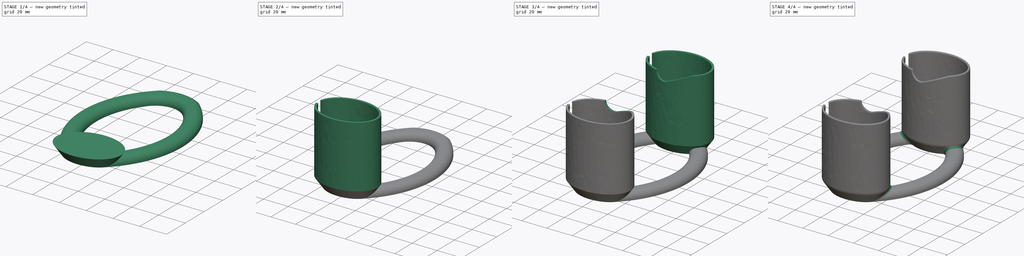
[diagram: build sequence overview — one tinted view per stage of 4, left to right]
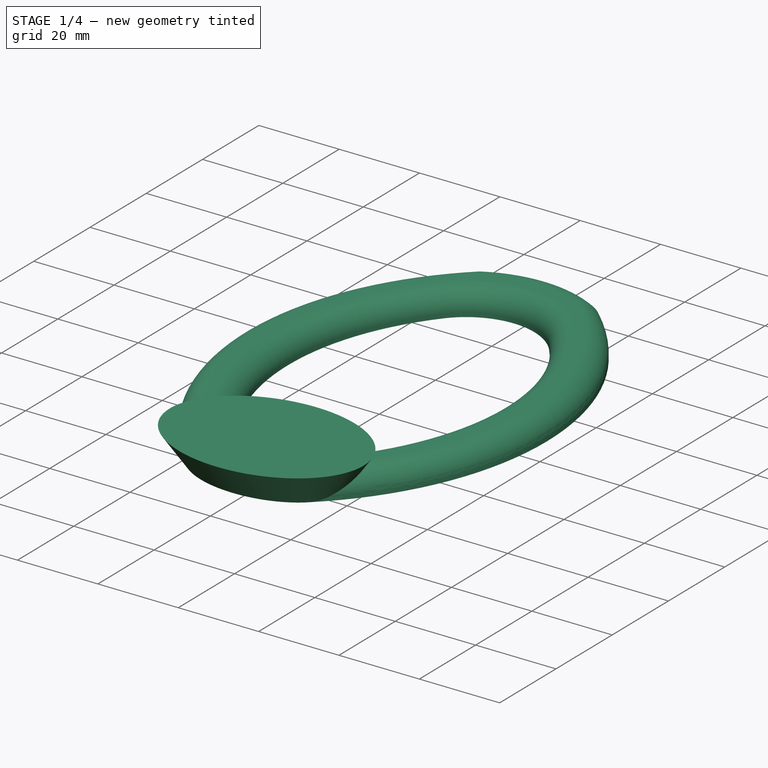
[diagram: stage 1 of 4 — iso view after this stage's code; geometry added in this stage tinted green]
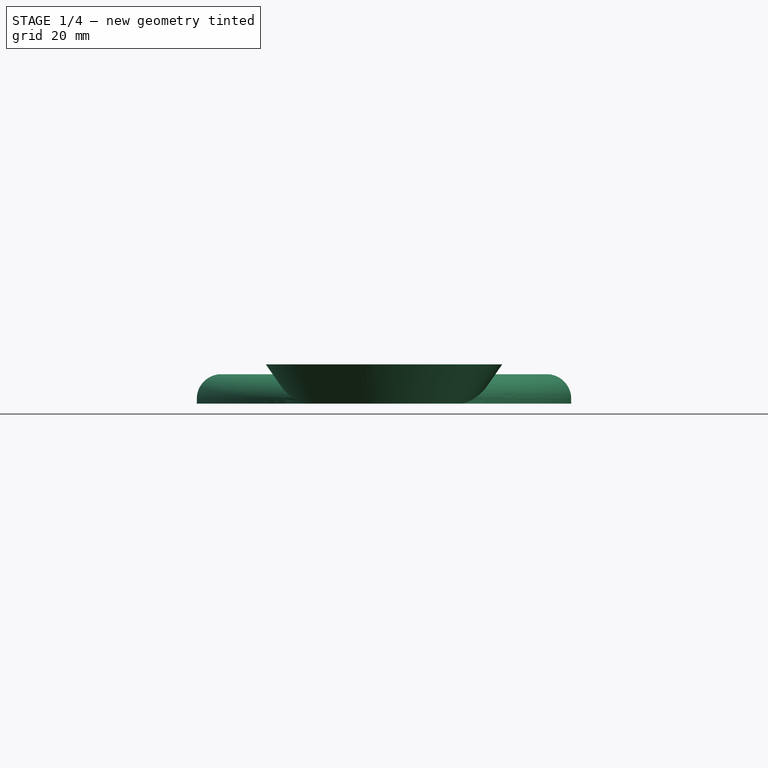
[diagram: stage 1 of 4 — front view after this stage's code; geometry added in this stage tinted green]
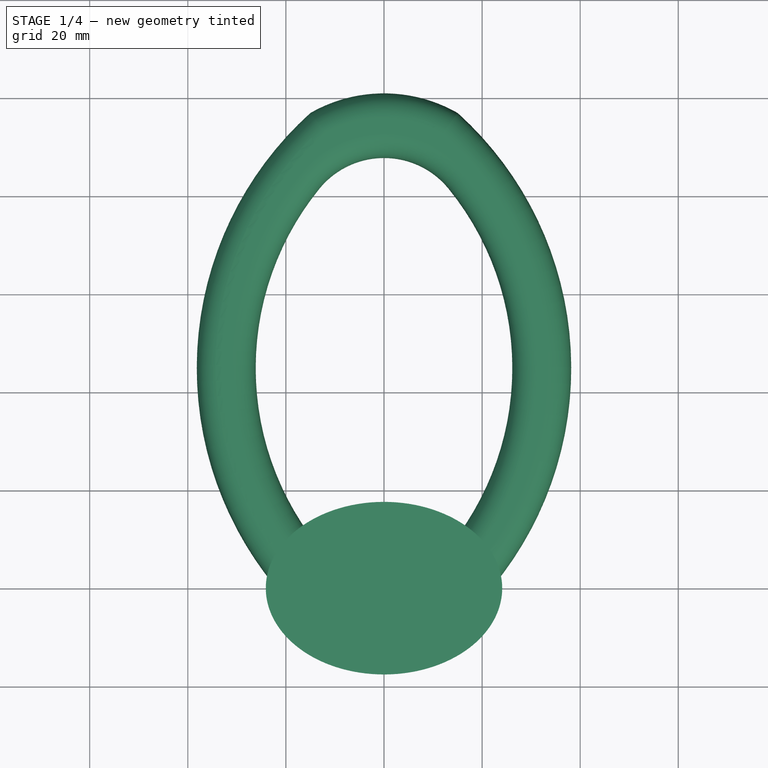
[diagram: stage 1 of 4 — top view after this stage's code; geometry added in this stage tinted green]
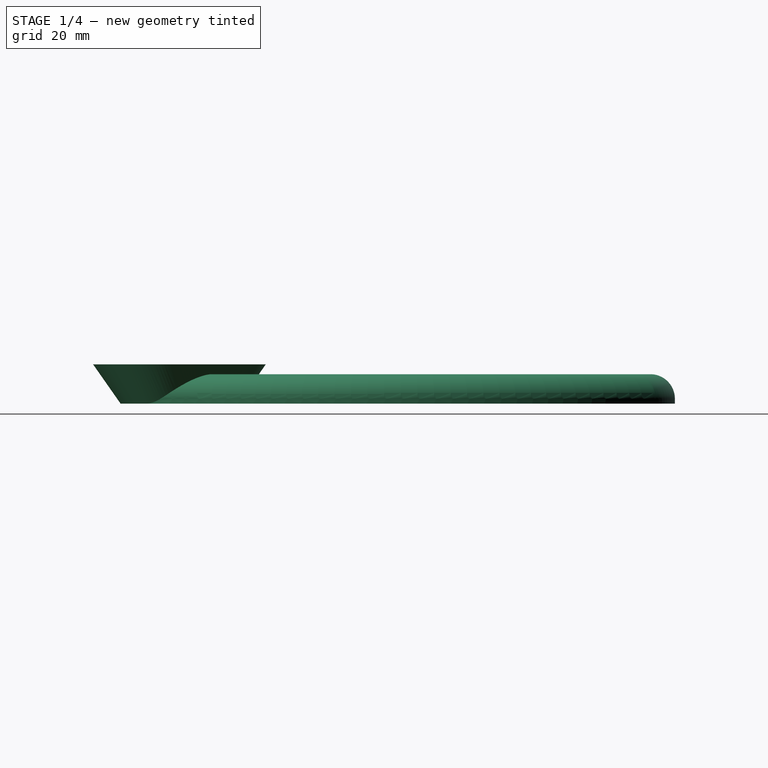
[diagram: stage 1 of 4 — right view after this stage's code; geometry added in this stage tinted green]
FCSTD DOCUMENT  (FreeCAD 0.21R33771 (Git))
Label: Q3ControllerHolder
License: All rights reserved
LicenseURL: http://en.wikipedia.org/wiki/All_rights_reserved
objects: Sketcher::SketchObject×9, PartDesign::Fillet×4, PartDesign::Pad×2, PartDesign::Pocket×2, PartDesign::AdditiveLoft×1, PartDesign::SubtractiveLoft×1, PartDesign::LinearPattern×1, PartDesign::Body×1
note: 31 computed .brp shape members not serialized (recipe doc carries the construction recipe); baked Part::Feature solids carry a one-line shape summary decoded from their .brp

FEATURE [Sketcher::SketchObject] Sketch005
  AttachmentOffset = pos=(0,8,1) rot=(0,0,1;0rad)
  FullyConstrained = true
  MapMode = 5
  Placement = pos=(1,1.6e-15,8) rot=(0.57735,0.57735,0.57735;2.0944rad)
  Support = -> [YZ_Plane]
  expr: .AttachmentOffset.Base.y = <<Sketch>>.AttachmentOffset.Base.z
  expr: Constraints[7] = <<Pad001>>.Length
  sketch-geometry (5):
    g0: LineSegment StartX=-0.05 StartY=2.05 StartZ=0 EndX=-0.05 EndY=50 EndZ=0
    g1: LineSegment StartX=-0.05 StartY=50 StartZ=0 EndX=0.05 EndY=50 EndZ=0
    g2: LineSegment StartX=0.05 StartY=50 StartZ=0 EndX=0.05 EndY=2.05 EndZ=0
    g3: ArcOfCircle CenterX=0 CenterY=2.05 CenterZ=0 NormalX=0 NormalY=0 NormalZ=1 AngleXU=0 Radius=0.05 StartAngle=3.14159 EndAngle=6.28319
    g4: GeomPoint X=0 Y=2 Z=0
  constraints (12):
    c: Vertical(g0)
    c: Coincident(g0,g1)
    c: Coincident(g1,g2)
    c: Vertical(g2)
    c: Tangent(g2,g3) = 1.5708
    c: Tangent(g0,g3) = 1.5708
    c: Symmetric(g0,g1,g-2)
    c: DistanceY(g-1,g0) = 50
    c: PointOnObject(g4,g3)
    c: PointOnObject(g4,g-2)
    c: DistanceY(g-1,g4) = 2
    c: DistanceX(g1,g1) = 0.1
FEATURE [Sketcher::SketchObject] Sketch006
  AttachmentOffset = pos=(0,8,-24.1) rot=(0,0,1;0rad)
  FullyConstrained = true
  MapMode = 5
  Placement = pos=(-24.1,7.1e-15,8) rot=(0.57735,0.57735,0.57735;2.0944rad)
  Support = -> [YZ_Plane]
  expr: .AttachmentOffset.Base.y = <<Sketch>>.AttachmentOffset.Base.z
  expr: .AttachmentOffset.Base.z = -Sketch004.Constraints.Wo / 2
  expr: Constraints[7] = <<Pad001>>.Length
  sketch-geometry (5):
    g0: LineSegment StartX=-2.5 StartY=4.5 StartZ=0 EndX=-2.5 EndY=50 EndZ=0
    g1: LineSegment StartX=-2.5 StartY=50 StartZ=0 EndX=2.5 EndY=50 EndZ=0
    g2: LineSegment StartX=2.5 StartY=50 StartZ=0 EndX=2.5 EndY=4.5 EndZ=0
    g3: ArcOfCircle CenterX=1e-16 CenterY=4.5 CenterZ=0 NormalX=0 NormalY=0 NormalZ=1 AngleXU=0 Radius=2.5 StartAngle=3.14159 EndAngle=6.28319
    g4: GeomPoint X=0 Y=2 Z=0
  constraints (12):
    c: Vertical(g0)
    c: Coincident(g0,g1)
    c: Coincident(g1,g2)
    c: Vertical(g2)
    c: Tangent(g2,g3) = 1.5708
    c: Tangent(g0,g3) = 1.5708
    c: Symmetric(g0,g1,g-2)
    c: DistanceY(g-1,g0) = 50
    c: PointOnObject(g4,g3)
    c: PointOnObject(g4,g-2)
    c: DistanceY(g-1,g4) = 2
    c: DistanceX(g1,g1) = 5
FEATURE [Sketcher::SketchObject] Sketch007
  AttachmentOffset = pos=(0,8,-45) rot=(0,0,1;0rad)
  FullyConstrained = true
  MapMode = 5
  Placement = pos=(0,45,8) rot=(1,0,0;1.5708rad)
  Support = -> [XZ_Plane]
  expr: .AttachmentOffset.Base.y = <<Sketch>>.AttachmentOffset.Base.z
  expr: .AttachmentOffset.Base.z = -<<Sketch009>>.Constraints.Dist / 2
  expr: Constraints[9] = <<Pad001>>.Length
  sketch-geometry (4):
    g0: LineSegment StartX=-7 StartY=50 StartZ=0 EndX=17.6378 EndY=50 EndZ=0
    g1: ArcOfCircle CenterX=-0.5 CenterY=50 CenterZ=0 NormalX=0 NormalY=0 NormalZ=1 AngleXU=0 Radius=6.5 StartAngle=3.14159 EndAngle=5.07891
    g2: LineSegment StartX=-7 StartY=50 StartZ=0 EndX=-7 EndY=40.5424 EndZ=0
    g3: LineSegment StartX=1.82939 StartY=43.9317 StartZ=0 EndX=17.6378 EndY=50 EndZ=0
  constraints (12):
    c: Horizontal(g0)
    c: Coincident(g1,g0)
    c: Coincident(g2,g0)
    c: Vertical(g2)
    c: Tangent(g2,g1)
    c: Coincident(g3,g0)
    c: Tangent(g1,g3) = -1.5708
    c: PointOnObject(g2,g3)
    c: Angle(g0,g3) = 0.366519
    c: DistanceY(g-1,g0) = 50
    c: DistanceX(g0,g-1) = 7
    c: Radius(g1) = 6.5
FEATURE [Sketcher::SketchObject] Sketch004
  FullyConstrained = true
  MapMode = 5
  Support = -> [XY_Plane]
  sketch-geometry (33):
    g0: Ellipse CenterX=0 CenterY=0 CenterZ=0 NormalX=0 NormalY=0 NormalZ=1 MajorRadius=22.5 MinorRadius=16 AngleXU=0
    g1: LineSegment StartX=22.5 StartY=0 StartZ=0 EndX=-22.5 EndY=0 EndZ=0
    g2: LineSegment StartX=0 StartY=16 StartZ=0 EndX=0 EndY=-16 EndZ=0
    g3: GeomPoint X=15.8193 Y=0 Z=0
    g4: GeomPoint X=-15.8193 Y=0 Z=0
    g5: Ellipse CenterX=0 CenterY=0 CenterZ=0 NormalX=0 NormalY=0 NormalZ=1 MajorRadius=24.1 MinorRadius=17.6 AngleXU=0
    g6: LineSegment StartX=24.1 StartY=0 StartZ=0 EndX=-24.1 EndY=0 EndZ=0
    g7: LineSegment StartX=0 StartY=17.6 StartZ=0 EndX=0 EndY=-17.6 EndZ=0
    g8: GeomPoint X=16.4636 Y=0 Z=0
    g9: GeomPoint X=-16.4636 Y=0 Z=0
    g10: LineSegment StartX=-24.1 StartY=0 StartZ=0 EndX=-22.5 EndY=0 EndZ=0
    g11: LineSegment StartX=0 StartY=16 StartZ=0 EndX=0 EndY=17.6 EndZ=0
    g12: LineSegment StartX=-9 StartY=11 StartZ=0 EndX=9 EndY=11 EndZ=0
    g13: LineSegment StartX=9 StartY=11 StartZ=0 EndX=9 EndY=-11 EndZ=0
    g14: LineSegment StartX=9 StartY=-11 StartZ=0 EndX=-9 EndY=-11 EndZ=0
    g15: LineSegment StartX=-9 StartY=-11 StartZ=0 EndX=-9 EndY=11 EndZ=0
    g16: Ellipse CenterX=0 CenterY=4 CenterZ=0 NormalX=0 NormalY=0 NormalZ=1 MajorRadius=9 MinorRadius=7 AngleXU=0
    g17: LineSegment StartX=9 StartY=4 StartZ=0 EndX=-9 EndY=4 EndZ=0
    g18: LineSegment StartX=0 StartY=11 StartZ=0 EndX=0 EndY=-3 EndZ=0
    g19: GeomPoint X=5.65685 Y=4 Z=0
    g20: GeomPoint X=-5.65685 Y=4 Z=0
    g21: Ellipse CenterX=0 CenterY=-4 CenterZ=0 NormalX=0 NormalY=0 NormalZ=1 MajorRadius=9 MinorRadius=7 AngleXU=0
    g22: LineSegment StartX=9 StartY=-4 StartZ=0 EndX=-9 EndY=-4 EndZ=0
    g23: LineSegment StartX=0 StartY=3 StartZ=0 EndX=0 EndY=-11 EndZ=0
    g24: GeomPoint X=5.65685 Y=-4 Z=0
    g25: GeomPoint X=-5.65685 Y=-4 Z=0
    g26: Ellipse CenterX=0 CenterY=0 CenterZ=0 NormalX=0 NormalY=0 NormalZ=1 MajorRadius=18.5 MinorRadius=12 AngleXU=0
    g27: LineSegment StartX=18.5 StartY=0 StartZ=0 EndX=-18.5 EndY=0 EndZ=0
    g28: LineSegment StartX=0 StartY=12 StartZ=0 EndX=0 EndY=-12 EndZ=0
    g29: GeomPoint X=14.0801 Y=0 Z=0
    g30: GeomPoint X=-14.0801 Y=0 Z=0
    g31: LineSegment StartX=0 StartY=12 StartZ=0 EndX=0 EndY=16 EndZ=0
    g32: LineSegment StartX=-18.5 StartY=0 StartZ=0 EndX=-22.5 EndY=0 EndZ=0
  constraints (47):
    c: InternalAlignment(g1-g4 -> g0) x4
    c: Horizontal(g1)
    c: DistanceX(g1,g1) = 45  'Wi'
    c: DistanceY(g2,g2) = 32  'Li'
    c: InternalAlignment(g6-g9 -> g5) x4
    c: Coincident(g5,g0)
    c: PointOnObject(g1,g6)
    c: DistanceX(g6,g1) = 1.6
    c: Coincident(g10,g6)
    c: Coincident(g10,g1)
    c: Coincident(g11,g2)
    c: Coincident(g11,g7)
    c: Equal(g10,g11)
    c: Coincident(g0,g-1)  '__ANCHOR__'
    c: DistanceX(g6,g6) = 48.2  'Wo'
    c: DistanceY(g7,g7) = 35.2  'Lo'
    c: Coincident(g12,g13)
    c: Coincident(g13,g14)
    c: Coincident(g14,g15)
    c: Coincident(g15,g12)
    c: Horizontal(g12)
    c: Horizontal(g14)
    c: Vertical(g13)
    c: Vertical(g15)
    c: Symmetric(g12,g13,g0)
    c: DistanceY(g14,g12) = 22
    c: DistanceX(g12,g12) = 18
    c: InternalAlignment(g17-g20 -> g16) x4
    c: PointOnObject(g16,g2)
    c: Tangent(g16,g13)
    c: Tangent(g16,g12)
    c: Horizontal(g17)
    c: InternalAlignment(g22-g25 -> g21) x4
    c: PointOnObject(g21,g2)
    c: Equal(g21,g16)
    c: Horizontal(g22)
    c: Tangent(g21,g14)
    c: DistanceY(g21,g16) = 8
    c: InternalAlignment(g27-g30 -> g26) x4
    c: Horizontal(g27)
    c: Coincident(g0,g26)
    c: Coincident(g31,g28)
    c: Coincident(g31,g2)
    c: Coincident(g32,g27)
    c: Coincident(g32,g1)
    c: Equal(g31,g32)
    c: DistanceY(g31,g31) = 4
FEATURE [Sketcher::SketchObject] Sketch
  AttachmentOffset = pos=(0,0,8) rot=(0,0,1;0rad)
  ExternalGeometry = -> [Sketch004]
  FullyConstrained = true
  MapMode = 5
  Placement = pos=(0,0,8) rot=(0,0,1;0rad)
  Support = -> [XY_Plane]
  sketch-geometry (5):
    g0: Ellipse CenterX=0 CenterY=0 CenterZ=0 NormalX=0 NormalY=0 NormalZ=1 MajorRadius=24.1 MinorRadius=17.6 AngleXU=0
    g1: LineSegment StartX=24.1 StartY=0 StartZ=0 EndX=-24.1 EndY=0 EndZ=0
    g2: LineSegment StartX=0 StartY=17.6 StartZ=0 EndX=0 EndY=-17.6 EndZ=0
    g3: GeomPoint X=16.4636 Y=0 Z=0
    g4: GeomPoint X=-16.4636 Y=0 Z=0
  constraints (4):
    c: InternalAlignment(g1-g4 -> g0) x4
    c: Horizontal(g1)
    c: Equal(g0,g-3)
    c: Coincident(g0,g-3)
FEATURE [Sketcher::SketchObject] Sketch001
  AttachmentOffset = pos=(0,0,8) rot=(0,0,1;0rad)
  ExternalGeometry = -> [Sketch004]
  FullyConstrained = true
  MapMode = 5
  Placement = pos=(0,0,8) rot=(0,0,1;0rad)
  Support = -> [XY_Plane]
  expr: .AttachmentOffset.Base.z = <<Sketch>>.AttachmentOffset.Base.z
  sketch-geometry (10):
    g0: Ellipse CenterX=0 CenterY=0 CenterZ=0 NormalX=0 NormalY=0 NormalZ=1 MajorRadius=22.5 MinorRadius=16 AngleXU=0
    g1: LineSegment StartX=22.5 StartY=0 StartZ=0 EndX=-22.5 EndY=0 EndZ=0
    g2: LineSegment StartX=0 StartY=16 StartZ=0 EndX=0 EndY=-16 EndZ=0
    g3: GeomPoint X=15.8193 Y=0 Z=0
    g4: GeomPoint X=-15.8193 Y=0 Z=0
    g5: Ellipse CenterX=0 CenterY=0 CenterZ=0 NormalX=0 NormalY=0 NormalZ=1 MajorRadius=24.1 MinorRadius=17.6 AngleXU=0
    g6: LineSegment StartX=24.1 StartY=0 StartZ=0 EndX=-24.1 EndY=0 EndZ=0
    g7: LineSegment StartX=0 StartY=17.6 StartZ=0 EndX=0 EndY=-17.6 EndZ=0
    g8: GeomPoint X=16.4636 Y=0 Z=0
    g9: GeomPoint X=-16.4636 Y=0 Z=0
  constraints (8):
    c: InternalAlignment(g1-g4 -> g0) x4
    c: Coincident(g0,g-4)
    c: InternalAlignment(g6-g9 -> g5) x4
    c: Coincident(g5,g0)
    c: Horizontal(g6)
    c: Equal(g5,g-4)
    c: Horizontal(g1)
    c: Equal(g0,g-3)
FEATURE [Sketcher::SketchObject] Sketch008
  ExternalGeometry = -> [Sketch004]
  FullyConstrained = true
  MapMode = 5
  Support = -> [XY_Plane]
  sketch-geometry (5):
    g0: Ellipse CenterX=0 CenterY=0 CenterZ=0 NormalX=0 NormalY=0 NormalZ=1 MajorRadius=18.5 MinorRadius=12 AngleXU=0
    g1: LineSegment StartX=18.5 StartY=0 StartZ=0 EndX=-18.5 EndY=0 EndZ=0
    g2: LineSegment StartX=0 StartY=12 StartZ=0 EndX=0 EndY=-12 EndZ=0
    g3: GeomPoint X=14.0801 Y=0 Z=0
    g4: GeomPoint X=-14.0801 Y=0 Z=0
  constraints (4):
    c: InternalAlignment(g1-g4 -> g0) x4
    c: Horizontal(g1)
    c: Equal(g0,g-3)
    c: Coincident(g-3,g0)
FEATURE [Sketcher::SketchObject] Sketch009
  ExternalGeometry = -> [Sketch004]
  FullyConstrained = true
  MapMode = 5
  Support = -> [XY_Plane]
  sketch-geometry (14):
    g0: Ellipse CenterX=0 CenterY=90 CenterZ=0 NormalX=0 NormalY=0 NormalZ=1 MajorRadius=18.5 MinorRadius=12 AngleXU=0
    g1: LineSegment StartX=18.5 StartY=90 StartZ=0 EndX=-18.5 EndY=90 EndZ=0
    g2: LineSegment StartX=0 StartY=102 StartZ=0 EndX=0 EndY=78 EndZ=0
    g3: GeomPoint X=14.0801 Y=90 Z=0
    g4: GeomPoint X=-14.0801 Y=90 Z=0
    g5: ArcOfCircle CenterX=31.8352 CenterY=45 CenterZ=0 NormalX=0 NormalY=0 NormalZ=1 AngleXU=0 Radius=70 StartAngle=2.30399 EndAngle=3.97919
    g6: ArcOfCircle CenterX=31.8352 CenterY=45 CenterZ=0 NormalX=0 NormalY=0 NormalZ=1 AngleXU=0 Radius=58 StartAngle=2.45921 EndAngle=3.82397
    g7: ArcOfCircle CenterX=-31.8352 CenterY=45 CenterZ=0 NormalX=0 NormalY=0 NormalZ=1 AngleXU=0 Radius=70 StartAngle=5.44559 EndAngle=7.12079
    g8: ArcOfCircle CenterX=-31.8352 CenterY=45 CenterZ=0 NormalX=0 NormalY=0 NormalZ=1 AngleXU=0 Radius=58 StartAngle=5.60081 EndAngle=6.96557
    g9: LineSegment StartX=-38.1648 StartY=45 StartZ=0 EndX=-26.1648 EndY=45 EndZ=0
    g10: ArcOfCircle CenterX=3.625e-13 CenterY=70.8694 CenterZ=0 NormalX=0 NormalY=0 NormalZ=1 AngleXU=0 Radius=16.9792 StartAngle=0.68238 EndAngle=2.45921
    g11: ArcOfCircle CenterX=3.625e-13 CenterY=70.8694 CenterZ=0 NormalX=0 NormalY=0 NormalZ=1 AngleXU=0 Radius=30.147 StartAngle=1.04954 EndAngle=2.09205
    g12: ArcOfCircle CenterX=4.7041e-12 CenterY=19.1306 CenterZ=0 NormalX=0 NormalY=0 NormalZ=1 AngleXU=0 Radius=16.9792 StartAngle=3.82397 EndAngle=5.60081
    g13: ArcOfCircle CenterX=4.7041e-12 CenterY=19.1306 CenterZ=0 NormalX=0 NormalY=0 NormalZ=1 AngleXU=0 Radius=30.147 StartAngle=4.19114 EndAngle=5.23364
  constraints (31):
    c: InternalAlignment(g1-g4 -> g0) x4
    c: PointOnObject(g0,g-2)
    c: Equal(g-3,g0)
    c: DistanceY(g-3,g0) = 90  'Dist'
    c: Tangent(g5,g-3) = -1.5708
    c: Tangent(g5,g0) = -1.5708
    c: Radius(g5) = 70
    c: PointOnObject(g6,g0)
    c: PointOnObject(g6,g-3)
    c: Tangent(g7,g-3) = -1.5708
    c: Tangent(g7,g0) = -1.5708
    c: Equal(g7,g5)
    c: PointOnObject(g8,g0)
    c: PointOnObject(g8,g-3)
    c: Coincident(g6,g5)
    c: Coincident(g8,g7)
    c: PointOnObject(g9,g5)
    c: PointOnObject(g9,g6)
    c: Horizontal(g9)
    c: PointOnObject(g5,g9)
    c: DistanceX(g9,g9) = 12
    c: Coincident(g10,g8)
    c: Tangent(g6,g10) = -1.5708
    c: Coincident(g11,g5)
    c: Coincident(g11,g7)
    c: Coincident(g11,g10)
    c: Coincident(g12,g8)
    c: Tangent(g6,g12) = -1.5708
    c: Coincident(g13,g5)
    c: Coincident(g13,g7)
    c: Coincident(g12,g13)
FEATURE [PartDesign::Pad] Pad
  Direction = (0,0,1)
  Length = 6
  Length2 = 10
  Profile = -> Sketch009
  ReferenceAxis = -> Sketch009 [N_Axis]
  Refine = true
  Type = 0
FEATURE [PartDesign::Fillet] Fillet
  Base = -> Pad [Face10]
  BaseFeature = -> Pad
  Radius = 5
  SupportTransform = false
  UseAllEdges = false
FEATURE [PartDesign::AdditiveLoft] AdditiveLoft
  BaseFeature = -> Fillet
  Closed = false
  Profile = -> Sketch008
  Ruled = false
  Sections = -> [Sketch]
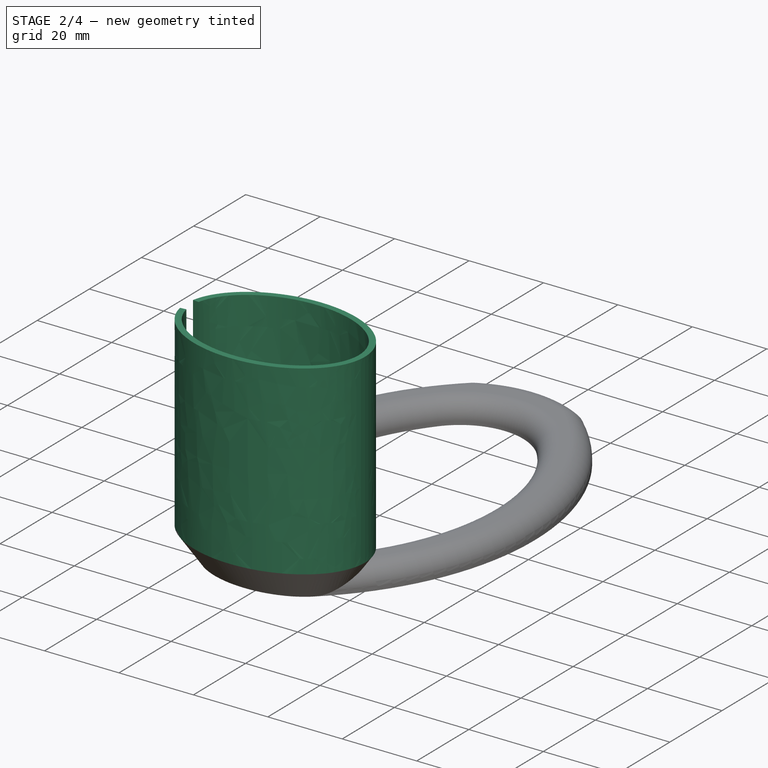
[diagram: stage 2 of 4 — iso view after this stage's code; geometry added in this stage tinted green]
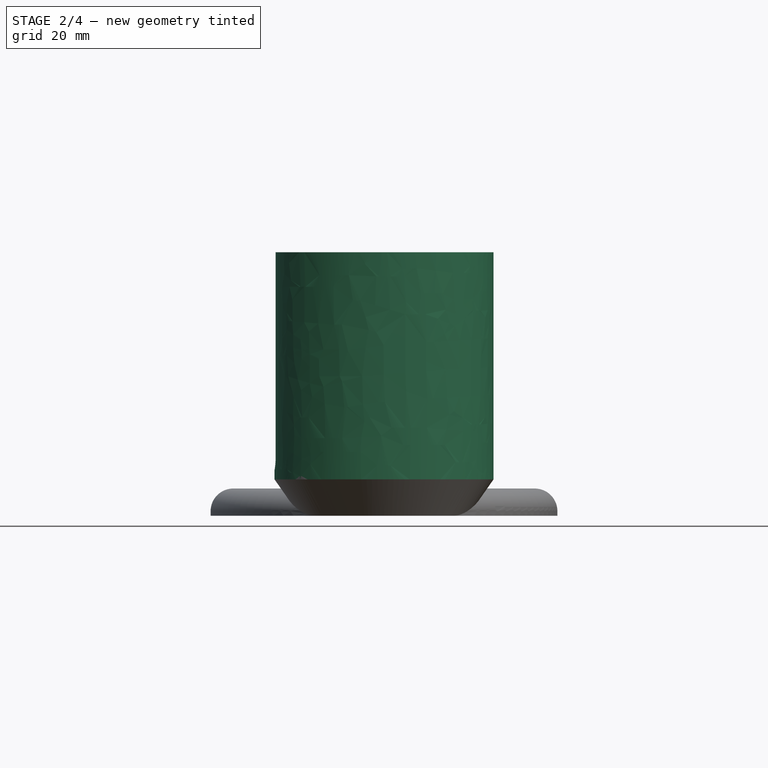
[diagram: stage 2 of 4 — front view after this stage's code; geometry added in this stage tinted green]
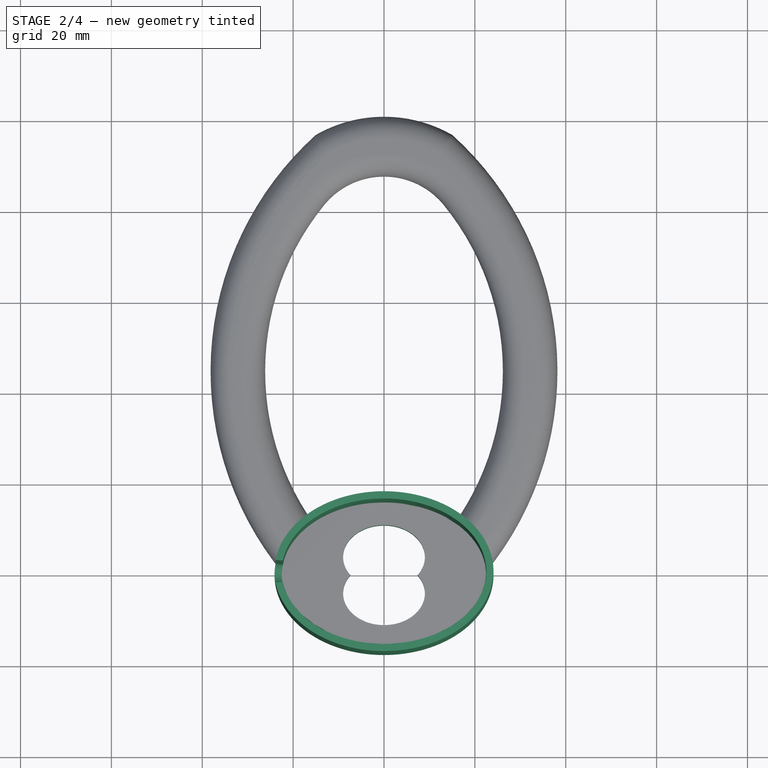
[diagram: stage 2 of 4 — top view after this stage's code; geometry added in this stage tinted green]
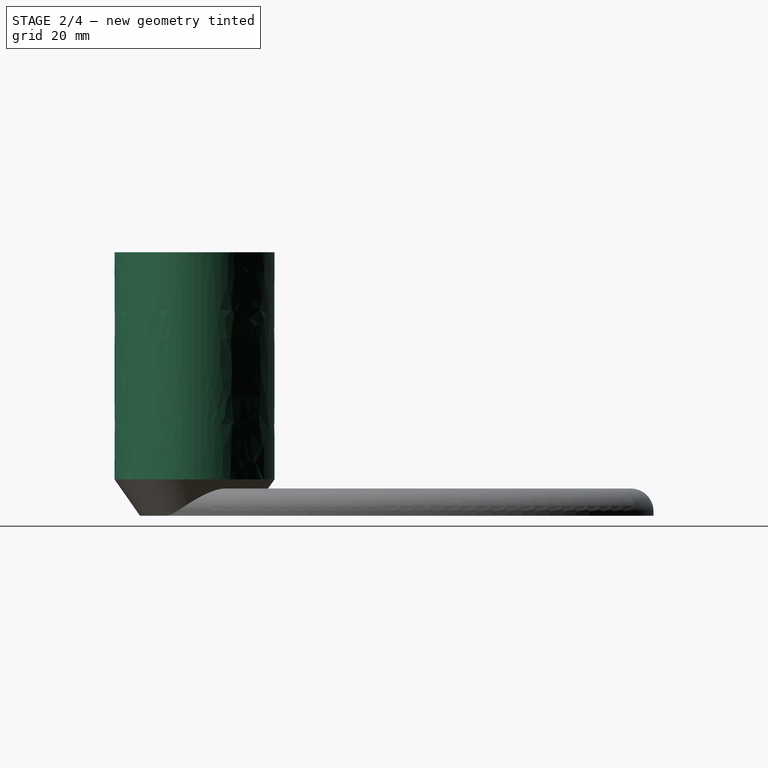
[diagram: stage 2 of 4 — right view after this stage's code; geometry added in this stage tinted green]
FEATURE [Sketcher::SketchObject] Sketch014
  AttachmentOffset = pos=(0,0,8) rot=(0,0,1;0rad)
  ExternalGeometry = -> [Sketch004]
  FullyConstrained = true
  MapMode = 5
  Placement = pos=(0,0,8) rot=(0,0,1;0rad)
  Support = -> [XY_Plane]
  expr: .AttachmentOffset.Base.z = <<Sketch>>.AttachmentOffset.Base.z
  sketch-geometry (10):
    g0: ArcOfEllipse CenterX=0 CenterY=4 CenterZ=0 NormalX=0 NormalY=0 NormalZ=1 MajorRadius=9 MinorRadius=7 AngleXU=0 StartAngle=5.67494 EndAngle=10.033
    g1: LineSegment StartX=9 StartY=4 StartZ=0 EndX=-9 EndY=4 EndZ=0
    g2: LineSegment StartX=-1e-16 StartY=11 StartZ=0 EndX=-1.7e-15 EndY=-3 EndZ=0
    g3: GeomPoint X=5.65685 Y=4 Z=0
    g4: GeomPoint X=-5.65685 Y=4 Z=0
    g5: ArcOfEllipse CenterX=0 CenterY=-4 CenterZ=0 NormalX=0 NormalY=0 NormalZ=1 MajorRadius=9 MinorRadius=7 AngleXU=0 StartAngle=2.53335 EndAngle=6.89143
    g6: LineSegment StartX=9 StartY=-4 StartZ=0 EndX=-9 EndY=-4 EndZ=0
    g7: LineSegment StartX=2e-16 StartY=3 StartZ=0 EndX=-2e-16 EndY=-11 EndZ=0
    g8: GeomPoint X=5.65685 Y=-4 Z=0
    g9: GeomPoint X=-5.65685 Y=-4 Z=0
  constraints (12):
    c: InternalAlignment(g1-g4 -> g0) x4
    c: Coincident(g0,g-3)
    c: InternalAlignment(g6-g9 -> g5) x4
    c: Coincident(g5,g-4)
    c: Equal(g0,g-3)
    c: Equal(g-4,g5)
    c: Horizontal(g1)
    c: Horizontal(g6)
    c: PointOnObject(g0,g5)
    c: PointOnObject(g5,g-3)
    c: PointOnObject(g5,g-3)
    c: PointOnObject(g0,g5)
FEATURE [PartDesign::Pocket] Pocket002
  BaseFeature = -> AdditiveLoft
  Direction = (0,0,-1)
  Length = 5
  Length2 = 5
  Profile = -> Sketch014
  ReferenceAxis = -> Sketch014 [N_Axis]
  Type = 1
FEATURE [PartDesign::Pad] Pad001
  BaseFeature = -> Pocket002
  Direction = (0,0,1)
  Length = 50
  Length2 = 10
  Profile = -> Sketch001
  ReferenceAxis = -> Sketch001 [N_Axis]
  Type = 0
FEATURE [PartDesign::SubtractiveLoft] SubtractiveLoft
  BaseFeature = -> Pad001
  Closed = false
  Profile = -> Sketch005
  Ruled = false
  Sections = -> [Sketch006]
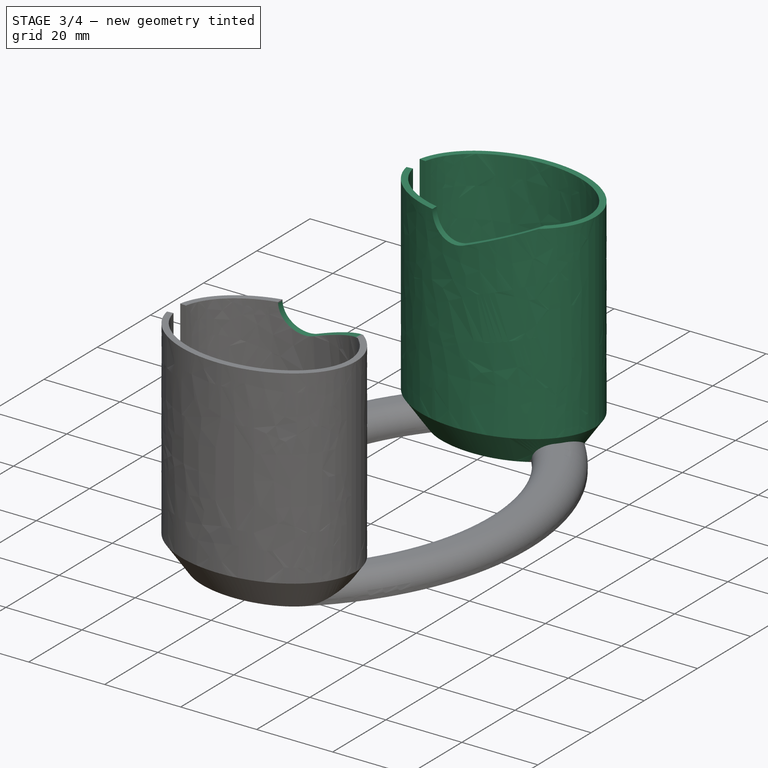
[diagram: stage 3 of 4 — iso view after this stage's code; geometry added in this stage tinted green]
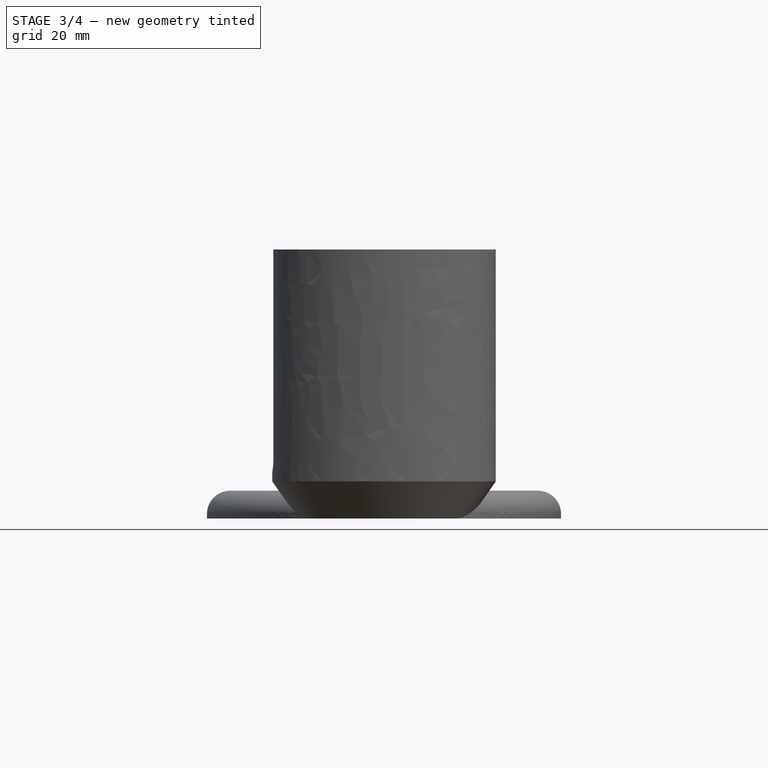
[diagram: stage 3 of 4 — front view after this stage's code; geometry added in this stage tinted green]
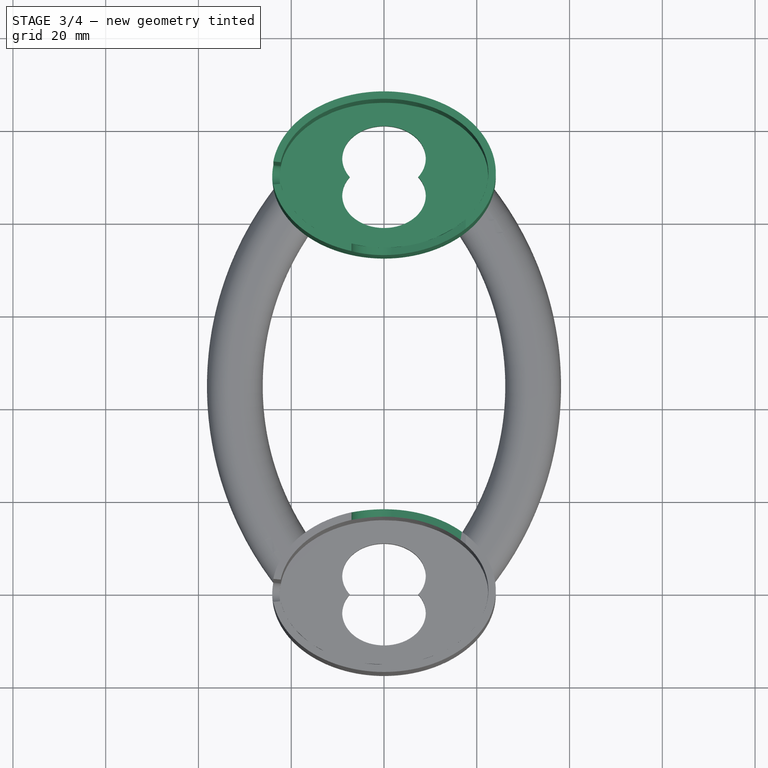
[diagram: stage 3 of 4 — top view after this stage's code; geometry added in this stage tinted green]
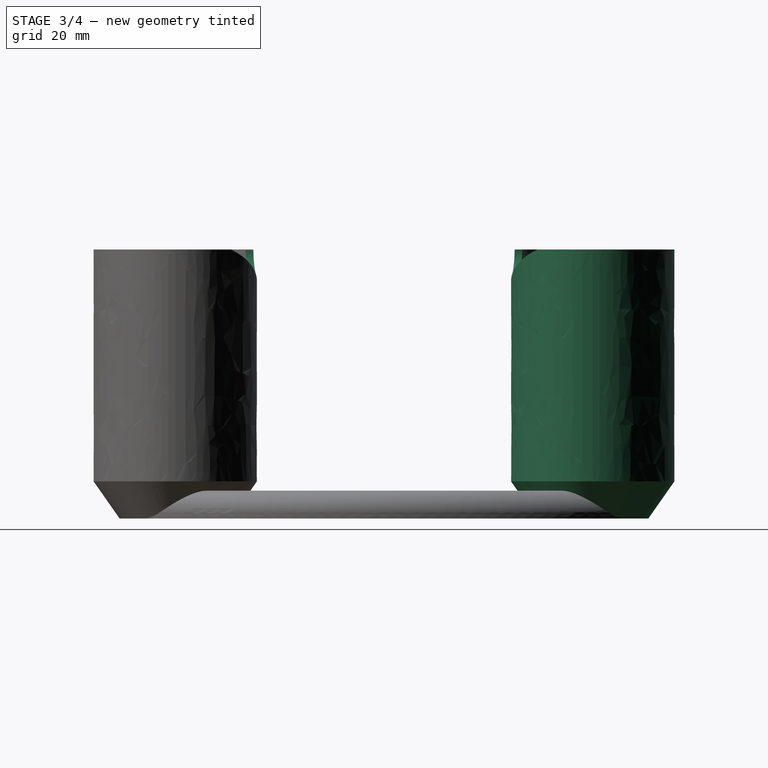
[diagram: stage 3 of 4 — right view after this stage's code; geometry added in this stage tinted green]
FEATURE [PartDesign::LinearPattern] LinearPattern001
  BaseFeature = -> SubtractiveLoft
  Direction = -> Y_Axis
  Length = 90
  Occurrences = 2
  Originals = -> [AdditiveLoft,Pocket002,Pad001,SubtractiveLoft]
  Refine = true
  expr: Length = <<Sketch009>>.Constraints.Dist
FEATURE [PartDesign::Pocket] Pocket
  BaseFeature = -> LinearPattern001
  Direction = (0,1,2e-16)
  Length = 90
  Length2 = 5
  Midplane = true
  Profile = -> Sketch007
  ReferenceAxis = -> Sketch007 [N_Axis]
  Type = 0
  expr: Length = <<Sketch009>>.Constraints.Dist
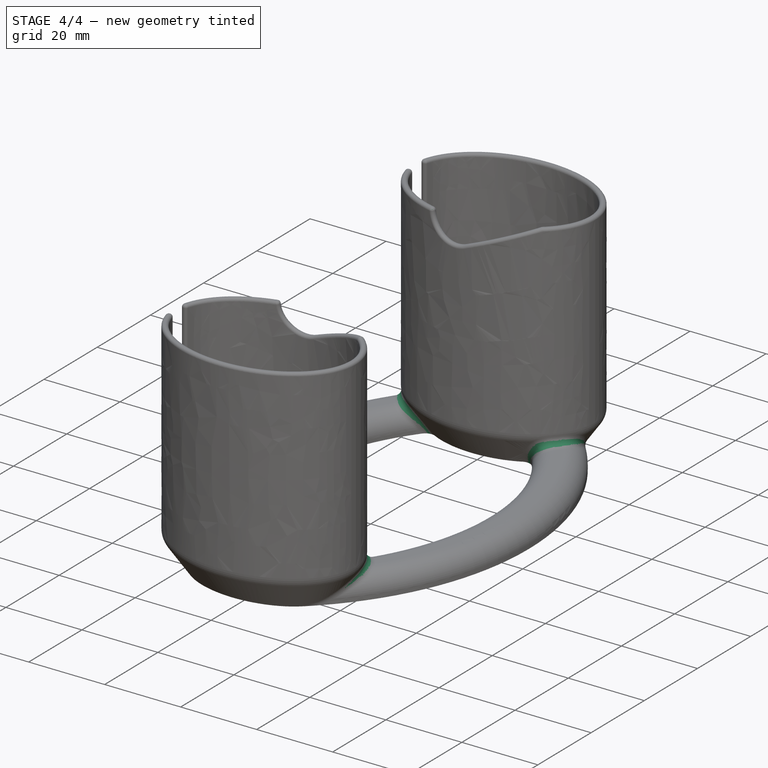
[diagram: stage 4 of 4 — iso view after this stage's code; geometry added in this stage tinted green]
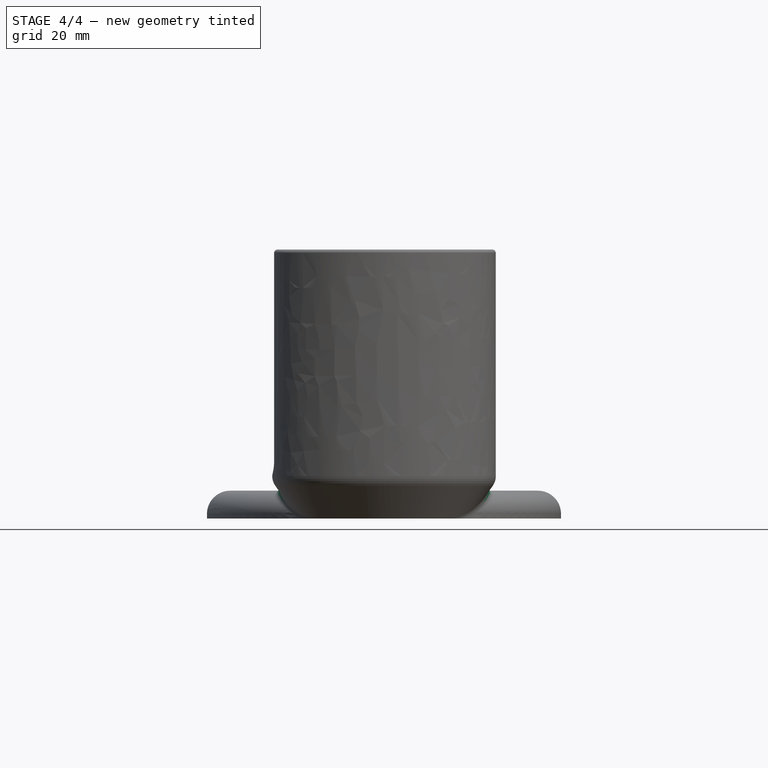
[diagram: stage 4 of 4 — front view after this stage's code; geometry added in this stage tinted green]
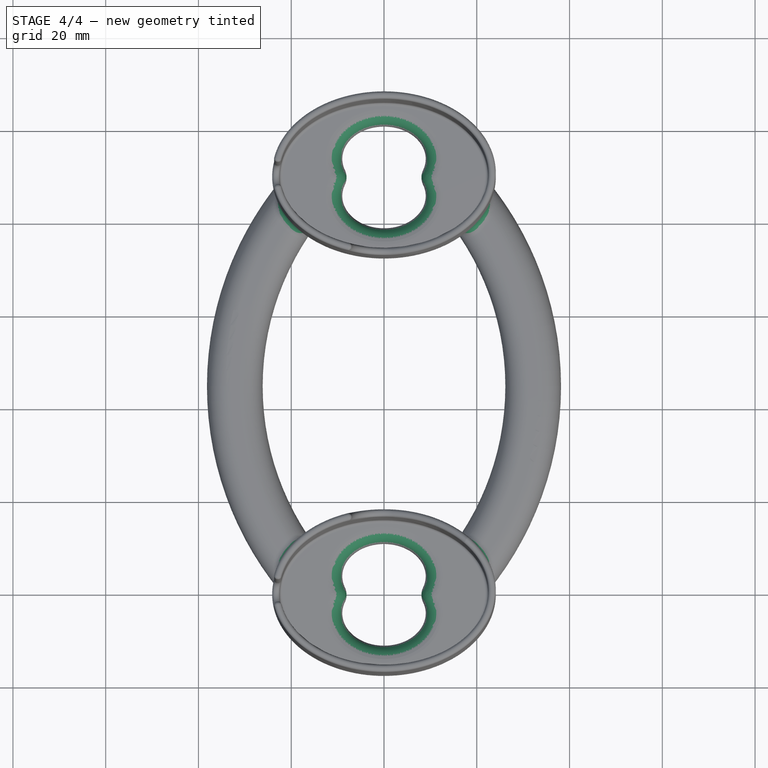
[diagram: stage 4 of 4 — top view after this stage's code; geometry added in this stage tinted green]
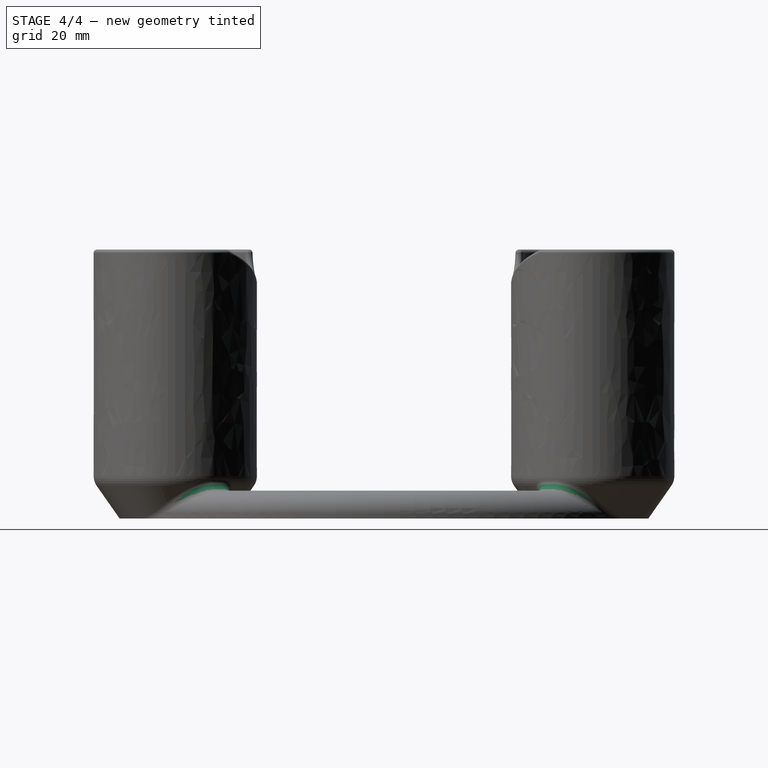
[diagram: stage 4 of 4 — right view after this stage's code; geometry added in this stage tinted green]
FEATURE [PartDesign::Fillet] Fillet001
  Base = -> Pocket [Face2,Face30,Face36,Face3,Face35,Face4,Face34,Face5,Face7,Face32,Edge94,Edge41]
  BaseFeature = -> Pocket
  Radius = 0.75
  SupportTransform = false
  UseAllEdges = false
FEATURE [PartDesign::Fillet] Fillet002
  Base = -> Fillet001 [Edge3,Edge112,Edge120,Edge117,Edge113,Edge116,Edge115,Edge119,Edge114,Edge118]
  BaseFeature = -> Fillet001
  Radius = 3.6
  SupportTransform = false
  UseAllEdges = false
FEATURE [PartDesign::Fillet] Fillet003
  Base = -> Fillet002 [Edge41,Edge103,Edge74,Edge36]
  BaseFeature = -> Fillet002
  Radius = 2
  SupportTransform = false
  UseAllEdges = false
FEATURE [PartDesign::Body] Body
  Group = -> [Sketch004,Pad,Fillet,AdditiveLoft,Sketch,Sketch001,Sketch014,Pocket002,Pad001,Sketch005,Sketch006,SubtractiveLoft,Sketch007,LinearPattern001,Pocket,Sketch008,Sketch009,Fillet001,Fillet002,Fillet003]
  Origin = -> Origin
  Tip = -> Fillet003
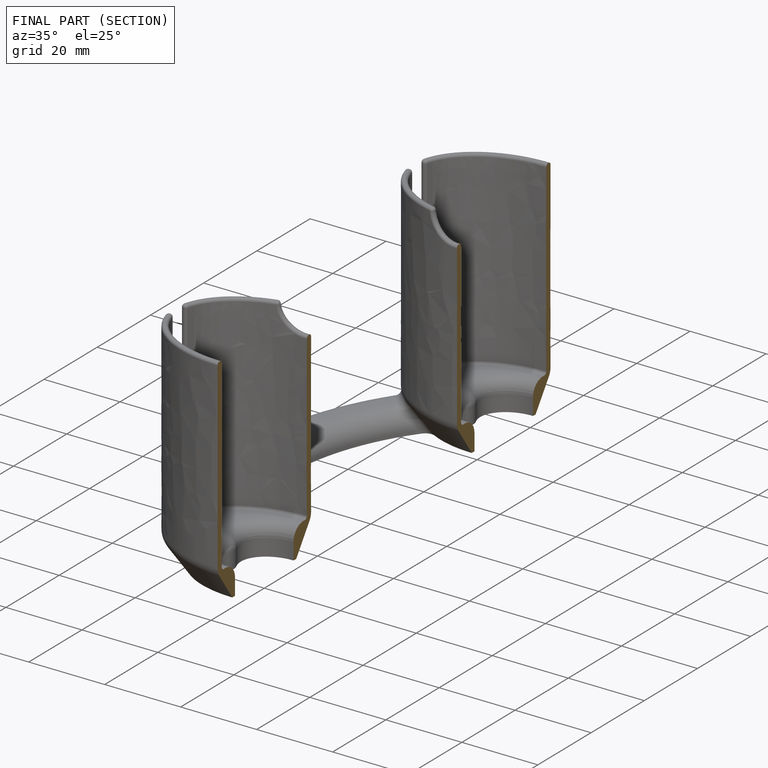
[diagram: finished part — half-section view (interior)]
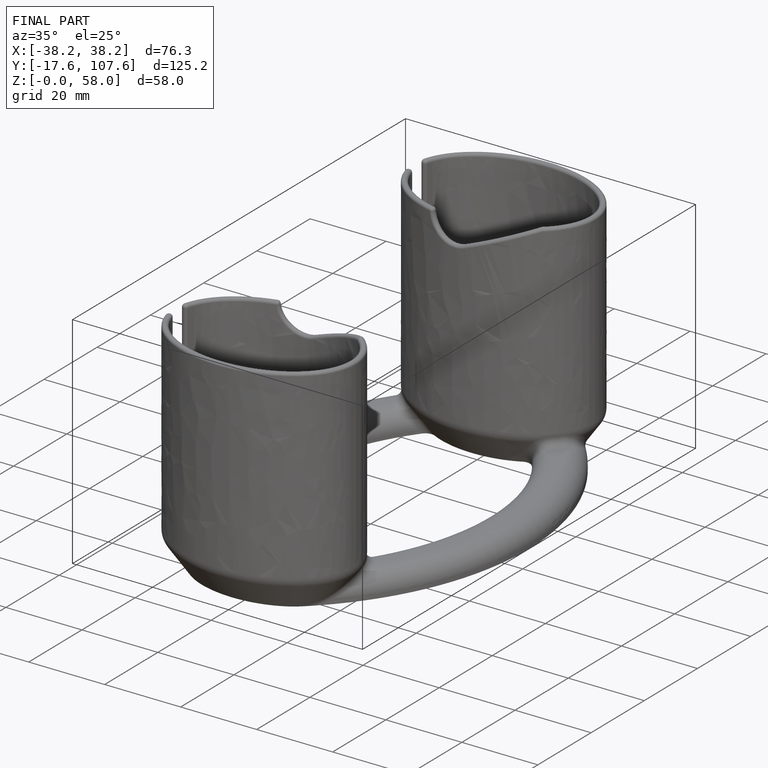
[diagram: finished part — iso view with bounding-box wireframe]
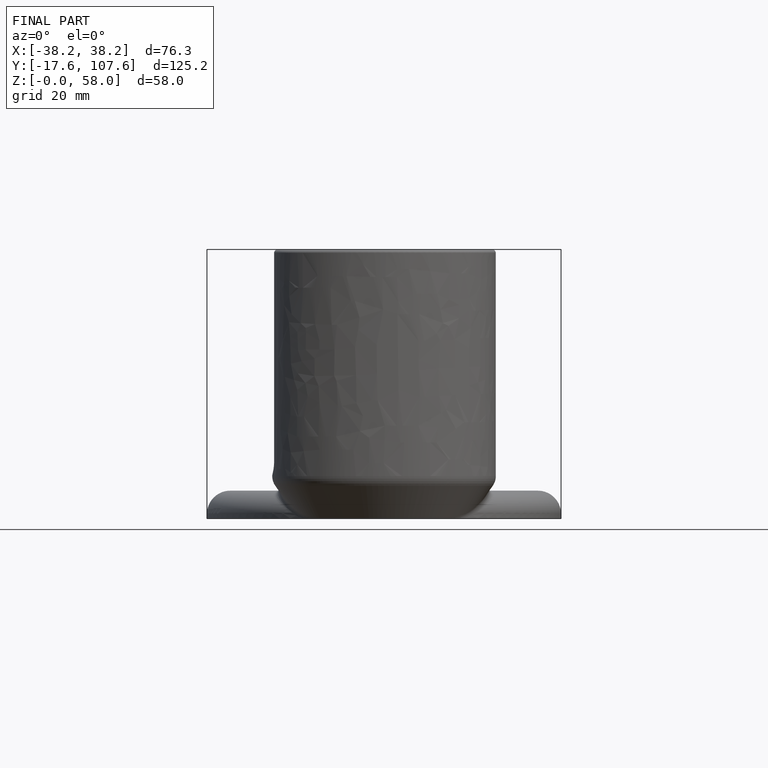
[diagram: finished part — front view with bounding-box wireframe]
